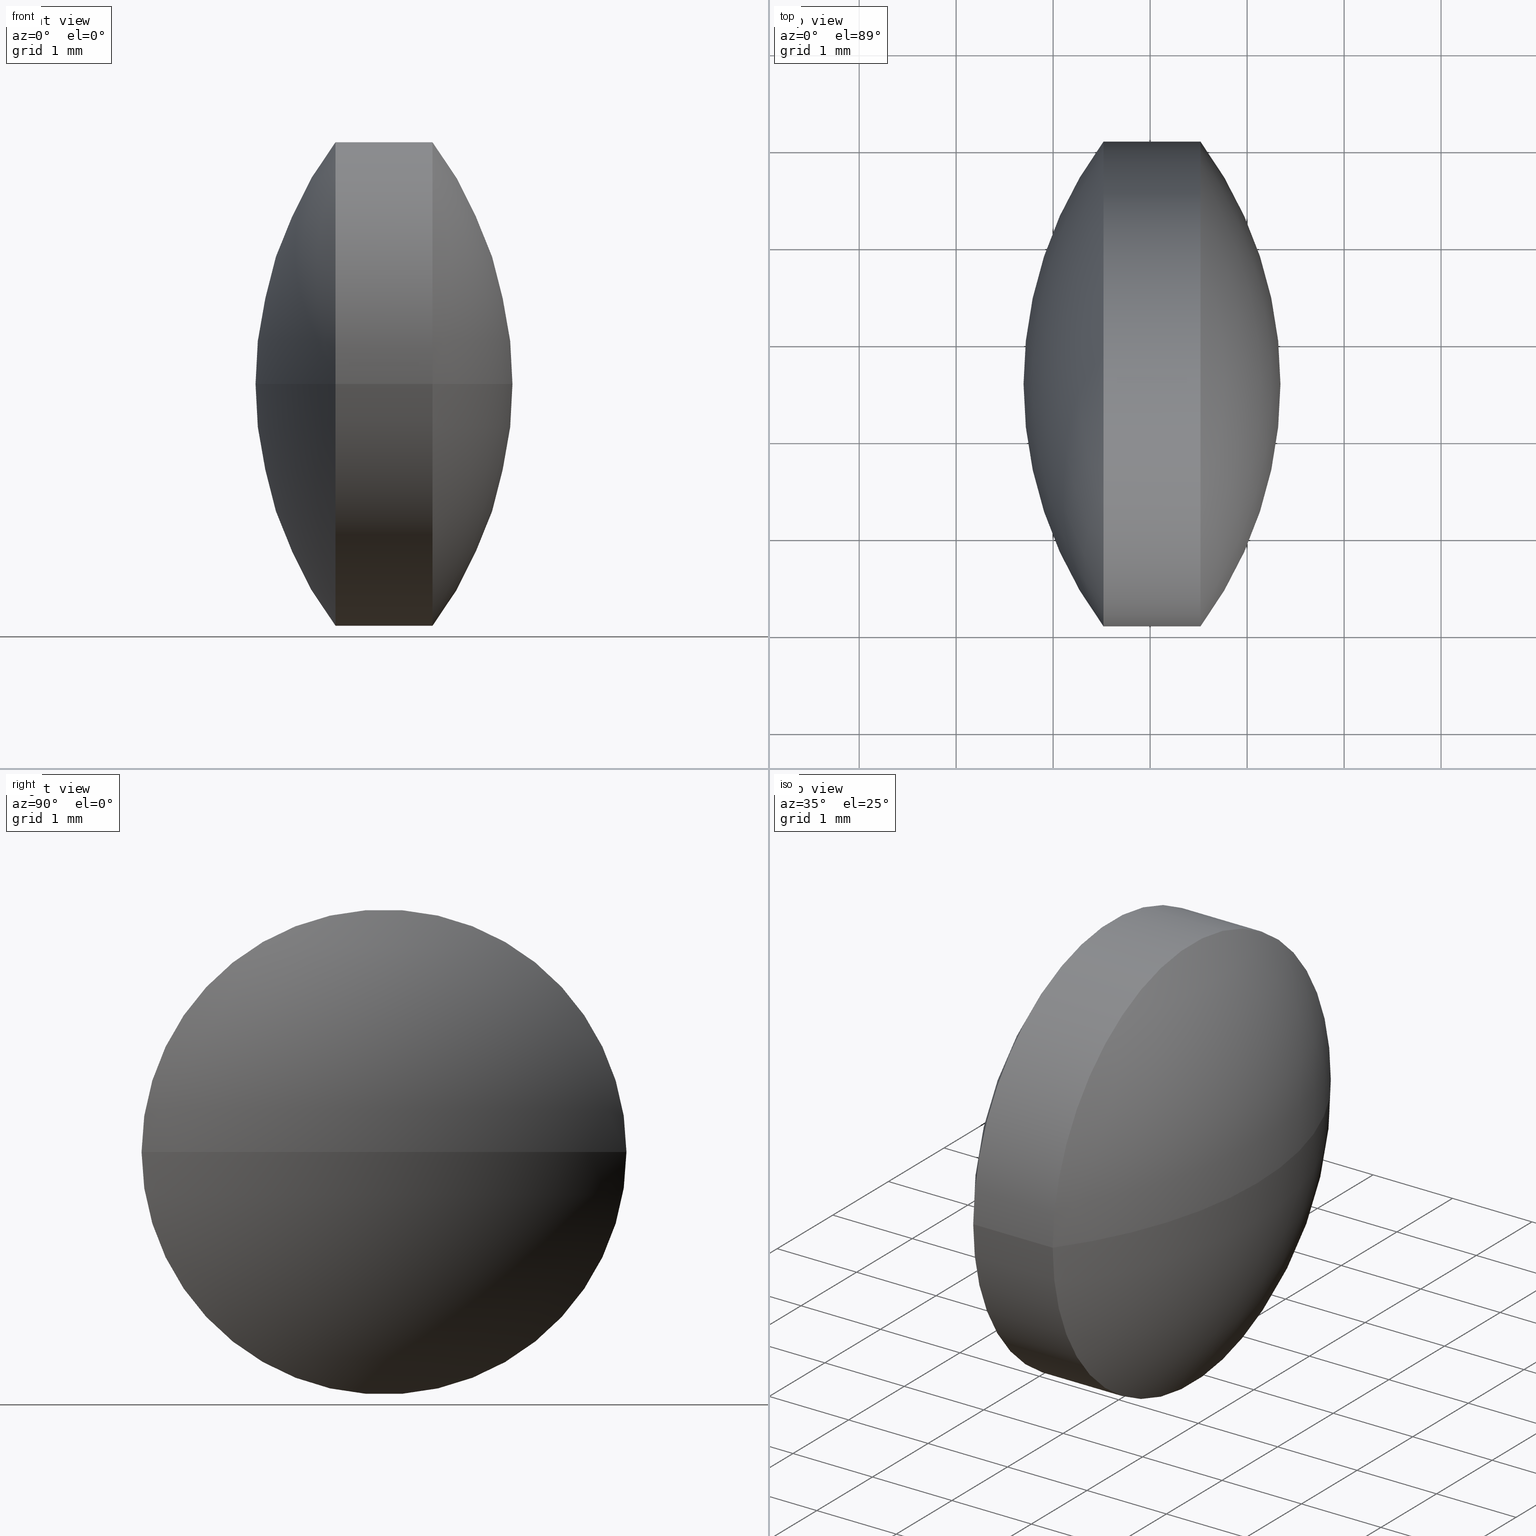
[diagram: canonical four-view strip — front | top / right | iso, engineering-drawing reading convention]
A machine part, canonical four-view strip (front | top / right | iso — engineering-drawing reading convention). The complete STEP part file that produces these views, byte-faithful:
ISO-10303-21;
HEADER;
FILE_DESCRIPTION (( 'STEP AP203' ),
    '1' );
FILE_NAME ('110005.STEP',
    '2019-06-24T06:16:25',
    ( '' ),
    ( '' ),
    'SwSTEP 2.0',
    'SolidWorks 2016',
    '' );
FILE_SCHEMA (( 'CONFIG_CONTROL_DESIGN' ));
ENDSEC;

DATA;
#1 = AXIS2_PLACEMENT_3D ( 'NONE', #3, #6, #34 ) ;
#2 = APPLICATION_PROTOCOL_DEFINITION ( 'international standard', 'config_control_design', 1994, #179 ) ;
#3 = CARTESIAN_POINT ( 'NONE',  ( 19.89670792681433700, 9.570100988815884300, 0.0000000000000000000 ) ) ;
#4 = PRODUCT_RELATED_PRODUCT_CATEGORY ( 'detail', '', ( #277 ) ) ;
#5 = CARTESIAN_POINT ( 'NONE',  ( 16.51932948320126100, 7.070100988815897700, -3.061616997868377200E-016 ) ) ;
#6 = DIRECTION ( 'NONE',  ( 0.0000000000000000000, 0.0000000000000000000, -1.000000000000000000 ) ) ;
#7 = EDGE_LOOP ( 'NONE', ( #273, #248, #31 ) ) ;
#8 = APPROVAL_PERSON_ORGANIZATION ( #76, #14, #166 ) ;
#9 = CARTESIAN_POINT ( 'NONE',  ( 17.51932948320127200, 12.07010098881589100, 0.0000000000000000000 ) ) ;
#10 = CYLINDRICAL_SURFACE ( 'NONE', #87, 2.500000000000001300 ) ;
#11 = DATE_AND_TIME ( #278, #100 ) ;
#12 = ADVANCED_FACE ( 'NONE', ( #70 ), #44, .T. ) ;
#13 = APPROVAL_STATUS ( 'not_yet_approved' ) ;
#14 = APPROVAL ( #164, 'δָ��' ) ;
#15 = EDGE_CURVE ( 'NONE', #295, #54, #244, .T. ) ;
#16 = ORIENTED_EDGE ( 'NONE', *, *, #91, .T. ) ;
#17 = LOCAL_TIME ( 14, 16, 25.00000000000000000, #130 ) ;
#18 = COORDINATED_UNIVERSAL_TIME_OFFSET ( 8, 0, .AHEAD. ) ;
#19 = SPHERICAL_SURFACE ( 'NONE', #72, 4.201985858065468100 ) ;
#20 = AXIS2_PLACEMENT_3D ( 'NONE', #95, #27, #259 ) ;
#21 = VERTEX_POINT ( 'NONE', #74 ) ;
#22 = DESIGN_CONTEXT ( 'detailed design', #290, 'design' ) ;
#23 = COORDINATED_UNIVERSAL_TIME_OFFSET ( 8, 0, .AHEAD. ) ;
#24 = CC_DESIGN_APPROVAL ( #256, ( #185 ) ) ;
#25 = APPROVAL_DATE_TIME ( #71, #256 ) ;
#26 = LOCAL_TIME ( 14, 16, 25.00000000000000000, #159 ) ;
#27 = DIRECTION ( 'NONE',  ( 0.0000000000000000000, 0.0000000000000000000, -1.000000000000000000 ) ) ;
#28 = FACE_OUTER_BOUND ( 'NONE', #7, .T. ) ;
#29 = LOCAL_TIME ( 14, 16, 25.00000000000000000, #298 ) ;
#30 = DIRECTION ( 'NONE',  ( 0.0000000000000000000, 1.000000000000000000, 1.224646799147353000E-016 ) ) ;
#31 = ORIENTED_EDGE ( 'NONE', *, *, #114, .F. ) ;
#32 = CC_DESIGN_PERSON_AND_ORGANIZATION_ASSIGNMENT ( #287, #85, ( #145 ) ) ;
#33 = APPLICATION_CONTEXT ( 'configuration controlled 3d designs of mechanical parts and assemblies' ) ;
#34 = DIRECTION ( 'NONE',  ( 2.477005208354672900E-015, 1.000000000000000000, 0.0000000000000000000 ) ) ;
#35 = CARTESIAN_POINT ( 'NONE',  ( 14.14195103958820700, 9.570100988815893200, 0.0000000000000000000 ) ) ;
#36 = CC_DESIGN_PERSON_AND_ORGANIZATION_ASSIGNMENT ( #280, #160, ( #277 ) ) ;
#37 = CIRCLE ( 'NONE', #236, 4.201985858065468100 ) ;
#38 = PERSON_AND_ORGANIZATION_ROLE ( 'design_supplier' ) ;
#39 = PERSON_AND_ORGANIZATION_ROLE ( 'creator' ) ;
#40 = APPROVAL_PERSON_ORGANIZATION ( #245, #57, #200 ) ;
#41 = ORIENTED_EDGE ( 'NONE', *, *, #137, .T. ) ;
#42 = CC_DESIGN_PERSON_AND_ORGANIZATION_ASSIGNMENT ( #108, #182, ( #150 ) ) ;
#43 = DATE_AND_TIME ( #207, #26 ) ;
#44 = CYLINDRICAL_SURFACE ( 'NONE', #227, 2.500000000000001300 ) ;
#45 = EDGE_CURVE ( 'NONE', #286, #102, #300, .T. ) ;
#46 = APPROVAL_DATE_TIME ( #265, #57 ) ;
#47 = DIRECTION ( 'NONE',  ( -1.000000000000000000, 2.438814065442388400E-015, -0.0000000000000000000 ) ) ;
#48 = SECURITY_CLASSIFICATION ( '', '', #203 ) ;
#49 = DIRECTION ( 'NONE',  ( 2.986685838959564500E-031, 1.224646799147353200E-016, -1.000000000000000000 ) ) ;
#50 = DIRECTION ( 'NONE',  ( -2.775557561562889000E-015, -1.000000000000000000, 0.0000000000000000000 ) ) ;
#51 = AXIS2_PLACEMENT_3D ( 'NONE', #81, #101, #262 ) ;
#52 = AXIS2_PLACEMENT_3D ( 'NONE', #234, #221, #104 ) ;
#53 = CARTESIAN_POINT ( 'NONE',  ( 14.14195103958820700, 9.570100988815893200, 0.0000000000000000000 ) ) ;
#54 = VERTEX_POINT ( 'NONE', #230 ) ;
#55 = VECTOR ( 'NONE', #289, 1000.000000000000000 ) ;
#56 = DIRECTION ( 'NONE',  ( -2.775557561562891000E-015, -1.000000000000000000, 0.0000000000000000000 ) ) ;
#57 = APPROVAL ( #136, 'δָ��' ) ;
#58 = CARTESIAN_POINT ( 'NONE',  ( 14.14195103958820700, 9.570100988815893200, 0.0000000000000000000 ) ) ;
#59 = FACE_OUTER_BOUND ( 'NONE', #202, .T. ) ;
#60 = CARTESIAN_POINT ( 'NONE',  ( 0.0000000000000000000, 0.0000000000000000000, 0.0000000000000000000 ) ) ;
#61 = DIRECTION ( 'NONE',  ( 0.0000000000000000000, 0.0000000000000000000, -1.000000000000000000 ) ) ;
#62 = ORIENTED_EDGE ( 'NONE', *, *, #15, .F. ) ;
#63 = COORDINATED_UNIVERSAL_TIME_OFFSET ( 8, 0, .AHEAD. ) ;
#64 = PERSON_AND_ORGANIZATION_ROLE ( 'creator' ) ;
#65 = CIRCLE ( 'NONE', #98, 4.201985858065468100 ) ;
#66 = APPLICATION_CONTEXT ( 'configuration controlled 3d designs of mechanical parts and assemblies' ) ;
#67 = CC_DESIGN_PERSON_AND_ORGANIZATION_ASSIGNMENT ( #177, #39, ( #185 ) ) ;
#68 = ORIENTED_EDGE ( 'NONE', *, *, #258, .F. ) ;
#69 = DATE_TIME_ROLE ( 'classification_date' ) ;
#70 = FACE_OUTER_BOUND ( 'NONE', #82, .T. ) ;
#71 = DATE_AND_TIME ( #139, #89 ) ;
#72 = AXIS2_PLACEMENT_3D ( 'NONE', #58, #61, #288 ) ;
#73 = CC_DESIGN_SECURITY_CLASSIFICATION ( #252, ( #150 ) ) ;
#74 = CARTESIAN_POINT ( 'NONE',  ( 16.51932948320127200, 12.07010098881588600, 0.0000000000000000000 ) ) ;
#75 = ORIENTED_EDGE ( 'NONE', *, *, #15, .T. ) ;
#76 = PERSON_AND_ORGANIZATION ( #141, #242 ) ;
#77 = CARTESIAN_POINT ( 'NONE',  ( 19.89670792681433700, 9.570100988815884300, 0.0000000000000000000 ) ) ;
#78 = MANIFOLD_SOLID_BREP ( '��ת1', #192 ) ;
#79 = DIRECTION ( 'NONE',  ( -1.000000000000000000, 2.438814065442388400E-015, -0.0000000000000000000 ) ) ;
#80 = CC_DESIGN_DATE_AND_TIME_ASSIGNMENT ( #43, #69, ( #252 ) ) ;
#81 = CARTESIAN_POINT ( 'NONE',  ( 19.89670792681433700, 9.570100988815884300, 0.0000000000000000000 ) ) ;
#82 = EDGE_LOOP ( 'NONE', ( #218, #129, #119, #157 ) ) ;
#83 = DIRECTION ( 'NONE',  ( 0.0000000000000000000, 0.0000000000000000000, 1.000000000000000000 ) ) ;
#84 = APPROVAL_PERSON_ORGANIZATION ( #148, #135, #163 ) ;
#85 = PERSON_AND_ORGANIZATION_ROLE ( 'design_owner' ) ;
#86 = ORIENTED_EDGE ( 'NONE', *, *, #127, .F. ) ;
#87 = AXIS2_PLACEMENT_3D ( 'NONE', #217, #128, #233 ) ;
#88 = VERTEX_POINT ( 'NONE', #151 ) ;
#89 = LOCAL_TIME ( 14, 16, 25.00000000000000000, #302 ) ;
#90 = CC_DESIGN_PERSON_AND_ORGANIZATION_ASSIGNMENT ( #282, #64, ( #152 ) ) ;
#91 = EDGE_CURVE ( 'NONE', #54, #286, #194, .T. ) ;
#92 = CARTESIAN_POINT ( 'NONE',  ( 15.23618010071484900, 7.070100988815892300, 0.0000000000000000000 ) ) ;
#93 = PERSON_AND_ORGANIZATION ( #141, #242 ) ;
#94 = PERSON_AND_ORGANIZATION ( #141, #242 ) ;
#95 = CARTESIAN_POINT ( 'NONE',  ( 19.89670792681433700, 9.570100988815884300, 0.0000000000000000000 ) ) ;
#96 = PERSON_AND_ORGANIZATION ( #141, #242 ) ;
#97 = CC_DESIGN_DATE_AND_TIME_ASSIGNMENT ( #249, #291, ( #48 ) ) ;
#98 = AXIS2_PLACEMENT_3D ( 'NONE', #53, #154, #99 ) ;
#99 = DIRECTION ( 'NONE',  ( 0.0000000000000000000, 1.000000000000000000, 1.224646799147353000E-016 ) ) ;
#100 = LOCAL_TIME ( 14, 16, 25.00000000000000000, #155 ) ;
#101 = DIRECTION ( 'NONE',  ( 0.0000000000000000000, 0.0000000000000000000, 1.000000000000000000 ) ) ;
#102 = VERTEX_POINT ( 'NONE', #303 ) ;
#103 = PERSON_AND_ORGANIZATION ( #141, #242 ) ;
#104 = DIRECTION ( 'NONE',  ( -2.775557561562891000E-015, -1.000000000000000000, 0.0000000000000000000 ) ) ;
#105 = DATE_TIME_ROLE ( 'creation_date' ) ;
#106 = DATE_AND_TIME ( #184, #17 ) ;
#107 = APPROVAL_STATUS ( 'not_yet_approved' ) ;
#108 = PERSON_AND_ORGANIZATION ( #141, #242 ) ;
#109 = PERSON_AND_ORGANIZATION_ROLE ( 'design_supplier' ) ;
#110 = MECHANICAL_CONTEXT ( 'NONE', #33, 'mechanical' ) ;
#111 = CC_DESIGN_PERSON_AND_ORGANIZATION_ASSIGNMENT ( #103, #268, ( #48 ) ) ;
#112 = APPLICATION_PROTOCOL_DEFINITION ( 'international standard', 'config_control_design', 1994, #33 ) ;
#113 = PERSON_AND_ORGANIZATION ( #141, #242 ) ;
#114 = EDGE_CURVE ( 'NONE', #54, #295, #174, .T. ) ;
#115 = CIRCLE ( 'NONE', #52, 2.500000000000000400 ) ;
#116 = CC_DESIGN_PERSON_AND_ORGANIZATION_ASSIGNMENT ( #228, #224, ( #216 ) ) ;
#117 = CC_DESIGN_DATE_AND_TIME_ASSIGNMENT ( #257, #165, ( #152 ) ) ;
#118 = SPHERICAL_SURFACE ( 'NONE', #20, 4.201985858065468100 ) ;
#119 = ORIENTED_EDGE ( 'NONE', *, *, #172, .F. ) ;
#120 = APPROVAL_PERSON_ORGANIZATION ( #187, #191, #292 ) ;
#121 = ADVANCED_BREP_SHAPE_REPRESENTATION ( '110005', ( #78, #301 ), #272 ) ;
#122 = DIRECTION ( 'NONE',  ( -2.775557561562889000E-015, -1.000000000000000000, 0.0000000000000000000 ) ) ;
#123 =( LENGTH_UNIT ( ) NAMED_UNIT ( * ) SI_UNIT ( .MILLI., .METRE. ) );
#124 = ADVANCED_FACE ( 'NONE', ( #59 ), #118, .T. ) ;
#125 = ORIENTED_EDGE ( 'NONE', *, *, #45, .T. ) ;
#126 = CARTESIAN_POINT ( 'NONE',  ( 15.23618010071486100, 12.07010098881589300, 3.061616997868385100E-016 ) ) ;
#127 = EDGE_CURVE ( 'NONE', #21, #286, #115, .T. ) ;
#128 = DIRECTION ( 'NONE',  ( -1.000000000000000000, 2.438814065442388400E-015, -0.0000000000000000000 ) ) ;
#129 = ORIENTED_EDGE ( 'NONE', *, *, #305, .T. ) ;
#130 = COORDINATED_UNIVERSAL_TIME_OFFSET ( 8, 0, .AHEAD. ) ;
#131 = SHAPE_DEFINITION_REPRESENTATION ( #215, #121 ) ;
#132 = APPLICATION_PROTOCOL_DEFINITION ( 'international standard', 'config_control_design', 1994, #66 ) ;
#133 = APPLICATION_PROTOCOL_DEFINITION ( 'international standard', 'config_control_design', 1994, #290 ) ;
#134 = LOCAL_TIME ( 14, 16, 25.00000000000000000, #23 ) ;
#135 = APPROVAL ( #246, 'δָ��' ) ;
#136 = APPROVAL_STATUS ( 'not_yet_approved' ) ;
#137 = EDGE_CURVE ( 'NONE', #88, #54, #65, .T. ) ;
#138 = ORIENTED_EDGE ( 'NONE', *, *, #161, .F. ) ;
#139 = CALENDAR_DATE ( 2019, 24, 6 ) ;
#140 = LOCAL_TIME ( 14, 16, 25.00000000000000000, #18 ) ;
#141 = PERSON ( 'δָ��', 'δָ��', 'δָ��', ('δָ��'), ('δָ��'), ('δָ��') ) ;
#142 = FACE_OUTER_BOUND ( 'NONE', #241, .T. ) ;
#143 = APPROVAL_PERSON_ORGANIZATION ( #94, #144, #225 ) ;
#144 = APPROVAL ( #13, 'δָ��' ) ;
#145 = PRODUCT ( '110005', '110005', '', ( #110 ) ) ;
#146 = ORIENTED_EDGE ( 'NONE', *, *, #258, .T. ) ;
#147 = APPROVAL_DATE_TIME ( #106, #14 ) ;
#148 = PERSON_AND_ORGANIZATION ( #141, #242 ) ;
#149 = DIRECTION ( 'NONE',  ( -2.775557561562889800E-015, -1.000000000000000000, 0.0000000000000000000 ) ) ;
#150 = PRODUCT_DEFINITION_FORMATION_WITH_SPECIFIED_SOURCE ( '�κ�', '', #145, .NOT_KNOWN. ) ;
#151 = CARTESIAN_POINT ( 'NONE',  ( 18.34393689765367700, 9.570100988815882600, 0.0000000000000000000 ) ) ;
#152 = PRODUCT_DEFINITION ( 'δ֪', '', #185, #22 ) ;
#153 = DIRECTION ( 'NONE',  ( 1.000000000000000000, 0.0000000000000000000, 0.0000000000000000000 ) ) ;
#154 = DIRECTION ( 'NONE',  ( 2.986685838959564500E-031, 1.224646799147353200E-016, -1.000000000000000000 ) ) ;
#155 = COORDINATED_UNIVERSAL_TIME_OFFSET ( 8, 0, .AHEAD. ) ;
#156 = DIRECTION ( 'NONE',  ( 2.477005208354672900E-015, 1.000000000000000000, 0.0000000000000000000 ) ) ;
#157 = ORIENTED_EDGE ( 'NONE', *, *, #91, .F. ) ;
#158 = APPROVAL_PERSON_ORGANIZATION ( #96, #256, #201 ) ;
#159 = COORDINATED_UNIVERSAL_TIME_OFFSET ( 8, 0, .AHEAD. ) ;
#160 = PERSON_AND_ORGANIZATION_ROLE ( 'design_owner' ) ;
#161 = EDGE_CURVE ( 'NONE', #88, #295, #37, .T. ) ;
#162 = SPHERICAL_SURFACE ( 'NONE', #253, 4.201985858065468100 ) ;
#163 = APPROVAL_ROLE ( '' ) ;
#164 = APPROVAL_STATUS ( 'not_yet_approved' ) ;
#165 = DATE_TIME_ROLE ( 'creation_date' ) ;
#166 = APPROVAL_ROLE ( '' ) ;
#167 = LINE ( 'NONE', #126, #55 ) ;
#168 = CC_DESIGN_APPROVAL ( #57, ( #150 ) ) ;
#169 = APPROVAL_DATE_TIME ( #170, #191 ) ;
#170 = DATE_AND_TIME ( #181, #299 ) ;
#171 = CC_DESIGN_DATE_AND_TIME_ASSIGNMENT ( #11, #105, ( #216 ) ) ;
#172 = EDGE_CURVE ( 'NONE', #286, #21, #276, .T. ) ;
#173 = ORIENTED_EDGE ( 'NONE', *, *, #127, .T. ) ;
#174 = CIRCLE ( 'NONE', #175, 2.500000000000002200 ) ;
#175 = AXIS2_PLACEMENT_3D ( 'NONE', #189, #213, #50 ) ;
#176 =( NAMED_UNIT ( * ) PLANE_ANGLE_UNIT ( ) SI_UNIT ( $, .RADIAN. ) );
#177 = PERSON_AND_ORGANIZATION ( #141, #242 ) ;
#178 =( NAMED_UNIT ( * ) SI_UNIT ( $, .STERADIAN. ) SOLID_ANGLE_UNIT ( ) );
#179 = APPLICATION_CONTEXT ( 'configuration controlled 3d designs of mechanical parts and assemblies' ) ;
#180 = CARTESIAN_POINT ( 'NONE',  ( 0.0000000000000000000, 0.0000000000000000000, 0.0000000000000000000 ) ) ;
#181 = CALENDAR_DATE ( 2019, 24, 6 ) ;
#182 = PERSON_AND_ORGANIZATION_ROLE ( 'creator' ) ;
#183 = CC_DESIGN_APPROVAL ( #144, ( #216 ) ) ;
#184 = CALENDAR_DATE ( 2019, 24, 6 ) ;
#185 = PRODUCT_DEFINITION_FORMATION_WITH_SPECIFIED_SOURCE ( '�κ�', '', #277, .NOT_KNOWN. ) ;
#186 = ORIENTED_EDGE ( 'NONE', *, *, #172, .T. ) ;
#187 = PERSON_AND_ORGANIZATION ( #141, #242 ) ;
#188 = APPROVAL_DATE_TIME ( #250, #135 ) ;
#189 = CARTESIAN_POINT ( 'NONE',  ( 17.51932948320126500, 9.570100988815887900, 0.0000000000000000000 ) ) ;
#190 = FACE_OUTER_BOUND ( 'NONE', #279, .T. ) ;
#191 = APPROVAL ( #107, 'δָ��' ) ;
#192 = CLOSED_SHELL ( 'NONE', ( #12, #199, #124, #239, #219, #267 ) ) ;
#193 = DIRECTION ( 'NONE',  ( -1.000000000000000000, 2.438814065442388400E-015, -0.0000000000000000000 ) ) ;
#194 = LINE ( 'NONE', #92, #238 ) ;
#195 = CC_DESIGN_APPROVAL ( #14, ( #152 ) ) ;
#196 = LOCAL_TIME ( 14, 16, 25.00000000000000000, #304 ) ;
#197 = CARTESIAN_POINT ( 'NONE',  ( 14.14195103958820700, 9.570100988815893200, 0.0000000000000000000 ) ) ;
#198 = AXIS2_PLACEMENT_3D ( 'NONE', #220, #193, #56 ) ;
#199 = ADVANCED_FACE ( 'NONE', ( #284 ), #162, .T. ) ;
#200 = APPROVAL_ROLE ( '' ) ;
#201 = APPROVAL_ROLE ( '' ) ;
#202 = EDGE_LOOP ( 'NONE', ( #173, #125, #68 ) ) ;
#203 = SECURITY_CLASSIFICATION_LEVEL ( 'unclassified' ) ;
#204 = CC_DESIGN_APPROVAL ( #191, ( #48 ) ) ;
#205 = DESIGN_CONTEXT ( 'detailed design', #66, 'design' ) ;
#206 = LOCAL_TIME ( 14, 16, 25.00000000000000000, #222 ) ;
#207 = CALENDAR_DATE ( 2019, 24, 6 ) ;
#208 = APPROVAL_DATE_TIME ( #270, #144 ) ;
#209 = PRODUCT_DEFINITION_SHAPE ( 'NONE', 'NONE',  #152 ) ;
#210 = PRODUCT_RELATED_PRODUCT_CATEGORY ( 'detail', '', ( #145 ) ) ;
#211 = CALENDAR_DATE ( 2019, 24, 6 ) ;
#212 = DIRECTION ( 'NONE',  ( -1.000000000000000000, 2.438814065442388400E-015, -0.0000000000000000000 ) ) ;
#213 = DIRECTION ( 'NONE',  ( -1.000000000000000000, 2.438814065442388400E-015, -0.0000000000000000000 ) ) ;
#214 = MECHANICAL_CONTEXT ( 'NONE', #179, 'mechanical' ) ;
#215 = PRODUCT_DEFINITION_SHAPE ( 'NONE', 'NONE',  #216 ) ;
#216 = PRODUCT_DEFINITION ( 'δ֪', '', #150, #205 ) ;
#217 = CARTESIAN_POINT ( 'NONE',  ( 15.23618010071485400, 9.570100988815893200, 0.0000000000000000000 ) ) ;
#218 = ORIENTED_EDGE ( 'NONE', *, *, #114, .T. ) ;
#219 = ADVANCED_FACE ( 'NONE', ( #28 ), #19, .T. ) ;
#220 = CARTESIAN_POINT ( 'NONE',  ( 16.51932948320126500, 9.570100988815889700, 0.0000000000000000000 ) ) ;
#221 = DIRECTION ( 'NONE',  ( -1.000000000000000000, 2.438814065442388400E-015, -0.0000000000000000000 ) ) ;
#222 = COORDINATED_UNIVERSAL_TIME_OFFSET ( 8, 0, .AHEAD. ) ;
#223 = CALENDAR_DATE ( 2019, 24, 6 ) ;
#224 = PERSON_AND_ORGANIZATION_ROLE ( 'creator' ) ;
#225 = APPROVAL_ROLE ( '' ) ;
#226 = AXIS2_PLACEMENT_3D ( 'NONE', #77, #49, #30 ) ;
#227 = AXIS2_PLACEMENT_3D ( 'NONE', #283, #47, #149 ) ;
#228 = PERSON_AND_ORGANIZATION ( #141, #242 ) ;
#229 = CC_DESIGN_PERSON_AND_ORGANIZATION_ASSIGNMENT ( #113, #109, ( #185 ) ) ;
#230 = CARTESIAN_POINT ( 'NONE',  ( 17.51932948320125800, 7.070100988815880800, -3.061616997868388100E-016 ) ) ;
#231 = CALENDAR_DATE ( 2019, 24, 6 ) ;
#232 = CC_DESIGN_PERSON_AND_ORGANIZATION_ASSIGNMENT ( #93, #38, ( #150 ) ) ;
#233 = DIRECTION ( 'NONE',  ( -2.775557561562889800E-015, -1.000000000000000000, 0.0000000000000000000 ) ) ;
#234 = CARTESIAN_POINT ( 'NONE',  ( 16.51932948320126500, 9.570100988815889700, 0.0000000000000000000 ) ) ;
#235 = ORIENTED_EDGE ( 'NONE', *, *, #305, .F. ) ;
#236 = AXIS2_PLACEMENT_3D ( 'NONE', #197, #285, #153 ) ;
#237 = DIRECTION ( 'NONE',  ( 0.0000000000000000000, 0.0000000000000000000, 1.000000000000000000 ) ) ;
#238 = VECTOR ( 'NONE', #212, 1000.000000000000000 ) ;
#239 = ADVANCED_FACE ( 'NONE', ( #142 ), #269, .T. ) ;
#240 = DIRECTION ( 'NONE',  ( 1.000000000000000000, 0.0000000000000000000, 0.0000000000000000000 ) ) ;
#241 = EDGE_LOOP ( 'NONE', ( #255, #186, #146 ) ) ;
#242 = ORGANIZATION ( 'δָ��', 'δָ��', '' ) ;
#243 = PERSON_AND_ORGANIZATION_ROLE ( 'classification_officer' ) ;
#244 = CIRCLE ( 'NONE', #293, 2.500000000000002200 ) ;
#245 = PERSON_AND_ORGANIZATION ( #141, #242 ) ;
#246 = APPROVAL_STATUS ( 'not_yet_approved' ) ;
#247 = AXIS2_PLACEMENT_3D ( 'NONE', #60, #237, #266 ) ;
#248 = ORIENTED_EDGE ( 'NONE', *, *, #161, .T. ) ;
#249 = DATE_AND_TIME ( #264, #196 ) ;
#250 = DATE_AND_TIME ( #223, #140 ) ;
#251 = CIRCLE ( 'NONE', #51, 4.201985858065468100 ) ;
#252 = SECURITY_CLASSIFICATION ( '', '', #296 ) ;
#253 = AXIS2_PLACEMENT_3D ( 'NONE', #35, #260, #156 ) ;
#254 = CALENDAR_DATE ( 2019, 24, 6 ) ;
#255 = ORIENTED_EDGE ( 'NONE', *, *, #45, .F. ) ;
#256 = APPROVAL ( #294, 'δָ��' ) ;
#257 = DATE_AND_TIME ( #231, #206 ) ;
#258 = EDGE_CURVE ( 'NONE', #21, #102, #251, .T. ) ;
#259 = DIRECTION ( 'NONE',  ( 2.477005208354672900E-015, 1.000000000000000000, 0.0000000000000000000 ) ) ;
#260 = DIRECTION ( 'NONE',  ( 0.0000000000000000000, 0.0000000000000000000, -1.000000000000000000 ) ) ;
#261 = CC_DESIGN_PERSON_AND_ORGANIZATION_ASSIGNMENT ( #274, #243, ( #252 ) ) ;
#262 = DIRECTION ( 'NONE',  ( 1.000000000000000000, 0.0000000000000000000, 0.0000000000000000000 ) ) ;
#263 = EDGE_LOOP ( 'NONE', ( #138, #41, #62 ) ) ;
#264 = CALENDAR_DATE ( 2019, 24, 6 ) ;
#265 = DATE_AND_TIME ( #211, #134 ) ;
#266 = DIRECTION ( 'NONE',  ( 1.000000000000000000, 0.0000000000000000000, 0.0000000000000000000 ) ) ;
#267 = ADVANCED_FACE ( 'NONE', ( #190 ), #10, .T. ) ;
#268 = PERSON_AND_ORGANIZATION_ROLE ( 'classification_officer' ) ;
#269 = SPHERICAL_SURFACE ( 'NONE', #1, 4.201985858065468100 ) ;
#270 = DATE_AND_TIME ( #254, #29 ) ;
#271 = UNCERTAINTY_MEASURE_WITH_UNIT (LENGTH_MEASURE( 1.000000000000000100E-005 ), #123, 'distance_accuracy_value', 'NONE');
#272 =( GEOMETRIC_REPRESENTATION_CONTEXT ( 3 ) GLOBAL_UNCERTAINTY_ASSIGNED_CONTEXT ( ( #271 ) ) GLOBAL_UNIT_ASSIGNED_CONTEXT ( ( #123, #176, #178 ) ) REPRESENTATION_CONTEXT ( 'NONE', 'WORKASPACE' ) );
#273 = ORIENTED_EDGE ( 'NONE', *, *, #137, .F. ) ;
#274 = PERSON_AND_ORGANIZATION ( #141, #242 ) ;
#275 = CC_DESIGN_SECURITY_CLASSIFICATION ( #48, ( #185 ) ) ;
#276 = CIRCLE ( 'NONE', #198, 2.500000000000000400 ) ;
#277 = PRODUCT ( '110005', '110005', '', ( #214 ) ) ;
#278 = CALENDAR_DATE ( 2019, 24, 6 ) ;
#279 = EDGE_LOOP ( 'NONE', ( #235, #75, #16, #86 ) ) ;
#280 = PERSON_AND_ORGANIZATION ( #141, #242 ) ;
#281 = CARTESIAN_POINT ( 'NONE',  ( 17.51932948320126500, 9.570100988815887900, 0.0000000000000000000 ) ) ;
#282 = PERSON_AND_ORGANIZATION ( #141, #242 ) ;
#283 = CARTESIAN_POINT ( 'NONE',  ( 15.23618010071485400, 9.570100988815893200, 0.0000000000000000000 ) ) ;
#284 = FACE_OUTER_BOUND ( 'NONE', #263, .T. ) ;
#285 = DIRECTION ( 'NONE',  ( 0.0000000000000000000, 0.0000000000000000000, 1.000000000000000000 ) ) ;
#286 = VERTEX_POINT ( 'NONE', #5 ) ;
#287 = PERSON_AND_ORGANIZATION ( #141, #242 ) ;
#288 = DIRECTION ( 'NONE',  ( 2.477005208354672900E-015, 1.000000000000000000, 0.0000000000000000000 ) ) ;
#289 = DIRECTION ( 'NONE',  ( -1.000000000000000000, 2.438814065442388400E-015, -0.0000000000000000000 ) ) ;
#290 = APPLICATION_CONTEXT ( 'configuration controlled 3d designs of mechanical parts and assemblies' ) ;
#291 = DATE_TIME_ROLE ( 'classification_date' ) ;
#292 = APPROVAL_ROLE ( '' ) ;
#293 = AXIS2_PLACEMENT_3D ( 'NONE', #281, #79, #122 ) ;
#294 = APPROVAL_STATUS ( 'not_yet_approved' ) ;
#295 = VERTEX_POINT ( 'NONE', #9 ) ;
#296 = SECURITY_CLASSIFICATION_LEVEL ( 'unclassified' ) ;
#297 = CC_DESIGN_APPROVAL ( #135, ( #252 ) ) ;
#298 = COORDINATED_UNIVERSAL_TIME_OFFSET ( 8, 0, .AHEAD. ) ;
#299 = LOCAL_TIME ( 14, 16, 25.00000000000000000, #63 ) ;
#300 = CIRCLE ( 'NONE', #226, 4.201985858065468100 ) ;
#301 = AXIS2_PLACEMENT_3D ( 'NONE', #180, #83, #240 ) ;
#302 = COORDINATED_UNIVERSAL_TIME_OFFSET ( 8, 0, .AHEAD. ) ;
#303 = CARTESIAN_POINT ( 'NONE',  ( 15.69472206874886800, 9.570100988815895000, 0.0000000000000000000 ) ) ;
#304 = COORDINATED_UNIVERSAL_TIME_OFFSET ( 8, 0, .AHEAD. ) ;
#305 = EDGE_CURVE ( 'NONE', #295, #21, #167, .T. ) ;
ENDSEC;
END-ISO-10303-21;
